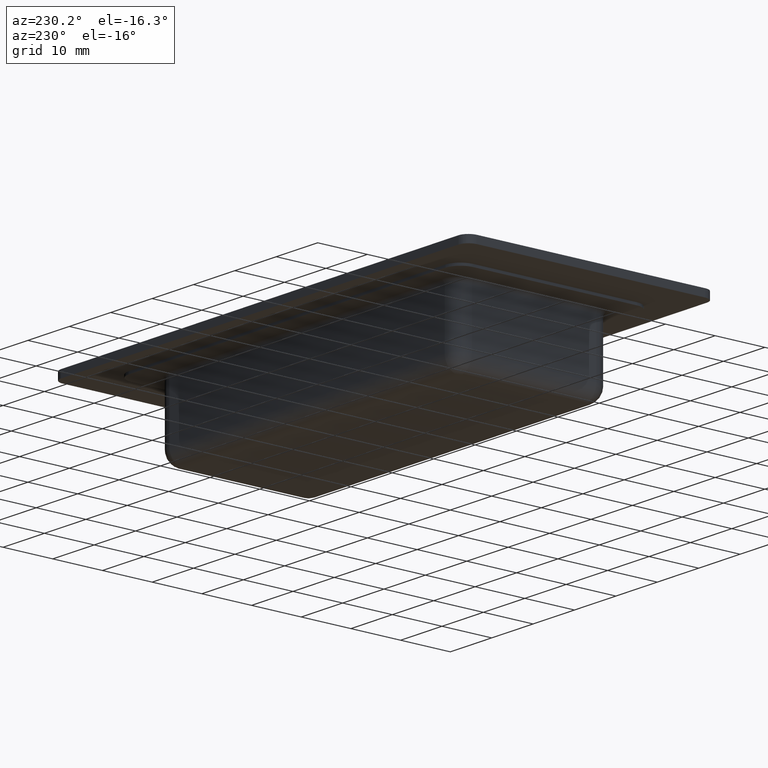
[diagram: clean part render]
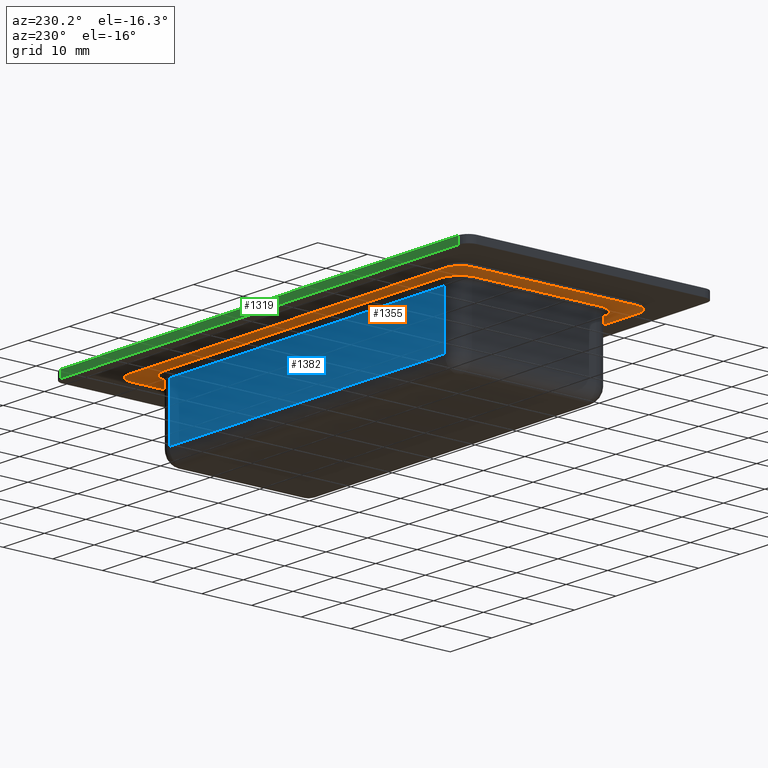
[diagram: same view with three faces highlighted in distinct colors, each labeled with its STEP entity id]
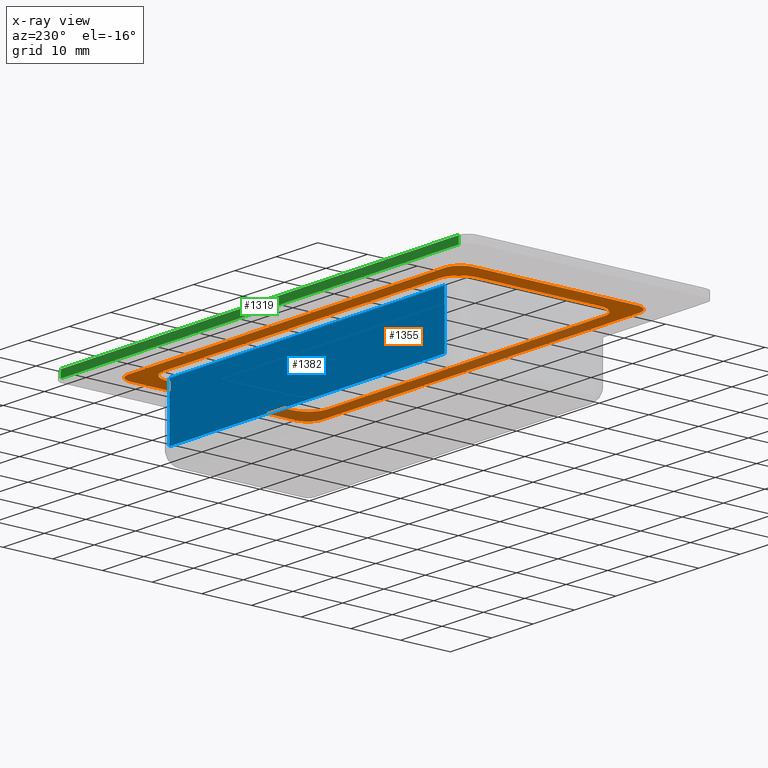
[diagram: x-ray of the same camera — body ghosted, the three highlighted faces saturated]
A machine part, auxiliary view with three faces highlighted in distinct colors.
The next image is the same camera in x-ray (body ghosted, the three faces saturated) — at least one of them is partly hidden behind the body in this view.
Their STEP definitions:

[orange] entity #1355 — the highlighted planar face has unit normal (0, 0, -1).
#36=FACE_BOUND('',#465,.T.);
#148=LINE('',#2491,#256);
#150=LINE('',#2495,#258);
#151=LINE('',#2499,#259);
#152=LINE('',#2503,#260);
#153=LINE('',#2509,#261);
#154=LINE('',#2513,#262);
#155=LINE('',#2517,#263);
#156=LINE('',#2520,#264);
#256=VECTOR('',#1844,33.);
#258=VECTOR('',#1848,76.5);
#259=VECTOR('',#1851,33.);
#260=VECTOR('',#1854,76.5);
#261=VECTOR('',#1859,25.);
#262=VECTOR('',#1862,66.5);
#263=VECTOR('',#1865,25.);
#264=VECTOR('',#1868,66.5);
#312=PLANE('',#1495);
#375=FACE_OUTER_BOUND('',#464,.T.);
#464=EDGE_LOOP('',(#1163,#1164,#1165,#1166,#1167,#1168,#1169,#1170));
#465=EDGE_LOOP('',(#1171,#1172,#1173,#1174,#1175,#1176,#1177,#1178));
#549=CIRCLE('',#1493,3.);
#550=CIRCLE('',#1496,3.);
#551=CIRCLE('',#1497,3.);
#552=CIRCLE('',#1498,3.);
#553=CIRCLE('',#1499,4.);
#554=CIRCLE('',#1500,4.);
#555=CIRCLE('',#1501,4.);
#556=CIRCLE('',#1502,4.);
#669=VERTEX_POINT('',#2484);
#670=VERTEX_POINT('',#2485);
#671=VERTEX_POINT('',#2490);
#672=VERTEX_POINT('',#2494);
#673=VERTEX_POINT('',#2496);
#674=VERTEX_POINT('',#2498);
#675=VERTEX_POINT('',#2500);
#676=VERTEX_POINT('',#2502);
#677=VERTEX_POINT('',#2505);
#678=VERTEX_POINT('',#2506);
#679=VERTEX_POINT('',#2508);
#680=VERTEX_POINT('',#2510);
#681=VERTEX_POINT('',#2512);
#682=VERTEX_POINT('',#2514);
#683=VERTEX_POINT('',#2516);
#684=VERTEX_POINT('',#2518);
#835=EDGE_CURVE('',#669,#670,#549,.T.);
#838=EDGE_CURVE('',#671,#670,#148,.T.);
#840=EDGE_CURVE('',#669,#672,#150,.T.);
#841=EDGE_CURVE('',#673,#672,#550,.T.);
#842=EDGE_CURVE('',#673,#674,#151,.T.);
#843=EDGE_CURVE('',#675,#674,#551,.T.);
#844=EDGE_CURVE('',#675,#676,#152,.T.);
#845=EDGE_CURVE('',#671,#676,#552,.T.);
#846=EDGE_CURVE('',#677,#678,#553,.T.);
#847=EDGE_CURVE('',#679,#677,#153,.T.);
#848=EDGE_CURVE('',#680,#679,#554,.T.);
#849=EDGE_CURVE('',#681,#680,#154,.T.);
#850=EDGE_CURVE('',#682,#681,#555,.T.);
#851=EDGE_CURVE('',#683,#682,#155,.T.);
#852=EDGE_CURVE('',#684,#683,#556,.T.);
#853=EDGE_CURVE('',#678,#684,#156,.T.);
#1163=ORIENTED_EDGE('',*,*,#835,.F.);
#1164=ORIENTED_EDGE('',*,*,#840,.T.);
#1165=ORIENTED_EDGE('',*,*,#841,.F.);
#1166=ORIENTED_EDGE('',*,*,#842,.T.);
#1167=ORIENTED_EDGE('',*,*,#843,.F.);
#1168=ORIENTED_EDGE('',*,*,#844,.T.);
#1169=ORIENTED_EDGE('',*,*,#845,.F.);
#1170=ORIENTED_EDGE('',*,*,#838,.T.);
#1171=ORIENTED_EDGE('',*,*,#846,.F.);
#1172=ORIENTED_EDGE('',*,*,#847,.F.);
#1173=ORIENTED_EDGE('',*,*,#848,.F.);
#1174=ORIENTED_EDGE('',*,*,#849,.F.);
#1175=ORIENTED_EDGE('',*,*,#850,.F.);
#1176=ORIENTED_EDGE('',*,*,#851,.F.);
#1177=ORIENTED_EDGE('',*,*,#852,.F.);
#1178=ORIENTED_EDGE('',*,*,#853,.F.);
#1355=ADVANCED_FACE('',(#375,#36),#312,.T.);
#1493=AXIS2_PLACEMENT_3D('',#2486,#1838,#1839);
#1495=AXIS2_PLACEMENT_3D('',#2493,#1846,#1847);
#1496=AXIS2_PLACEMENT_3D('',#2497,#1849,#1850);
#1497=AXIS2_PLACEMENT_3D('',#2501,#1852,#1853);
#1498=AXIS2_PLACEMENT_3D('',#2504,#1855,#1856);
#1499=AXIS2_PLACEMENT_3D('',#2507,#1857,#1858);
#1500=AXIS2_PLACEMENT_3D('',#2511,#1860,#1861);
#1501=AXIS2_PLACEMENT_3D('',#2515,#1863,#1864);
#1502=AXIS2_PLACEMENT_3D('',#2519,#1866,#1867);
#1838=DIRECTION('center_axis',(0.,0.,1.));
#1839=DIRECTION('ref_axis',(0.707106781186547,-0.707106781186547,0.));
#1844=DIRECTION('',(0.,-1.,0.));
#1846=DIRECTION('center_axis',(0.,0.,-1.));
#1847=DIRECTION('ref_axis',(-1.,0.,0.));
#1848=DIRECTION('',(-1.,0.,0.));
#1849=DIRECTION('center_axis',(0.,0.,1.));
#1850=DIRECTION('ref_axis',(-0.707106781186547,-0.707106781186547,0.));
#1851=DIRECTION('',(0.,1.,0.));
#1852=DIRECTION('center_axis',(0.,0.,1.));
#1853=DIRECTION('ref_axis',(-0.707106781186547,0.707106781186547,0.));
#1854=DIRECTION('',(1.,0.,0.));
#1855=DIRECTION('center_axis',(0.,0.,1.));
#1856=DIRECTION('ref_axis',(0.707106781186547,0.707106781186547,0.));
#1857=DIRECTION('center_axis',(0.,0.,-1.));
#1858=DIRECTION('ref_axis',(-0.707106781186548,0.707106781186547,0.));
#1859=DIRECTION('',(-2.86509167645202E-16,1.,0.));
#1860=DIRECTION('center_axis',(0.,0.,-1.));
#1861=DIRECTION('ref_axis',(-0.707106781186548,-0.707106781186547,0.));
#1862=DIRECTION('',(-1.,1.225073682345E-16,0.));
#1863=DIRECTION('center_axis',(0.,0.,-1.));
#1864=DIRECTION('ref_axis',(0.707106781186548,-0.707106781186547,0.));
#1865=DIRECTION('',(0.,-1.,0.));
#1866=DIRECTION('center_axis',(0.,0.,-1.));
#1867=DIRECTION('ref_axis',(0.707106781186547,0.707106781186548,0.));
#1868=DIRECTION('',(1.,0.,0.));
#2484=CARTESIAN_POINT('',(38.25,-19.5,-0.5));
#2485=CARTESIAN_POINT('',(41.25,-16.5,-0.5));
#2486=CARTESIAN_POINT('Origin',(38.25,-16.5,-0.5));
#2490=CARTESIAN_POINT('',(41.25,16.5,-0.5));
#2491=CARTESIAN_POINT('',(41.25,19.5,-0.5));
#2493=CARTESIAN_POINT('Origin',(0.,0.,-0.5));
#2494=CARTESIAN_POINT('',(-38.25,-19.5,-0.5));
#2495=CARTESIAN_POINT('',(41.25,-19.5,-0.5));
#2496=CARTESIAN_POINT('',(-41.25,-16.5,-0.5));
#2497=CARTESIAN_POINT('Origin',(-38.25,-16.5,-0.5));
#2498=CARTESIAN_POINT('',(-41.25,16.5,-0.5));
#2499=CARTESIAN_POINT('',(-41.25,-19.5,-0.5));
#2500=CARTESIAN_POINT('',(-38.25,19.5,-0.5));
#2501=CARTESIAN_POINT('Origin',(-38.25,16.5,-0.5));
#2502=CARTESIAN_POINT('',(38.25,19.5,-0.5));
#2503=CARTESIAN_POINT('',(-41.25,19.5,-0.5));
#2504=CARTESIAN_POINT('Origin',(38.25,16.5,-0.5));
#2505=CARTESIAN_POINT('',(-37.25,12.5,-0.5));
#2506=CARTESIAN_POINT('',(-33.25,16.5,-0.5));
#2507=CARTESIAN_POINT('Origin',(-33.25,12.5,-0.5));
#2508=CARTESIAN_POINT('',(-37.25,-12.5,-0.5));
#2509=CARTESIAN_POINT('',(-37.25,7.75,-0.5));
#2510=CARTESIAN_POINT('',(-33.25,-16.5,-0.5));
#2511=CARTESIAN_POINT('Origin',(-33.25,-12.5,-0.5));
#2512=CARTESIAN_POINT('',(33.25,-16.5,-0.5));
#2513=CARTESIAN_POINT('',(-18.125,-16.5,-0.5));
#2514=CARTESIAN_POINT('',(37.25,-12.5,-0.5));
#2515=CARTESIAN_POINT('Origin',(33.25,-12.5,-0.5));
#2516=CARTESIAN_POINT('',(37.25,12.5,-0.5));
#2517=CARTESIAN_POINT('',(37.25,-7.75,-0.5));
#2518=CARTESIAN_POINT('',(33.25,16.5,-0.5));
#2519=CARTESIAN_POINT('Origin',(33.25,12.5,-0.5));
#2520=CARTESIAN_POINT('',(18.125,16.5,-0.5));

[blue] entity #1382 — the highlighted planar face has unit normal (0, 1, 0).
#162=LINE('',#2540,#270);
#172=LINE('',#2579,#280);
#175=LINE('',#2594,#283);
#179=LINE('',#2614,#287);
#270=VECTOR('',#1896,66.5);
#280=VECTOR('',#1944,11.);
#283=VECTOR('',#1959,66.5);
#287=VECTOR('',#1993,11.);
#318=PLANE('',#1553);
#402=FACE_OUTER_BOUND('',#492,.T.);
#492=EDGE_LOOP('',(#1279,#1280,#1281,#1282));
#686=VERTEX_POINT('',#2534);
#687=VERTEX_POINT('',#2538);
#697=VERTEX_POINT('',#2578);
#703=VERTEX_POINT('',#2593);
#863=EDGE_CURVE('',#687,#686,#162,.T.);
#882=EDGE_CURVE('',#686,#697,#172,.T.);
#889=EDGE_CURVE('',#697,#703,#175,.T.);
#900=EDGE_CURVE('',#703,#687,#179,.T.);
#1279=ORIENTED_EDGE('',*,*,#863,.F.);
#1280=ORIENTED_EDGE('',*,*,#900,.F.);
#1281=ORIENTED_EDGE('',*,*,#889,.F.);
#1282=ORIENTED_EDGE('',*,*,#882,.F.);
#1382=ADVANCED_FACE('',(#402),#318,.T.);
#1553=AXIS2_PLACEMENT_3D('',#2613,#1991,#1992);
#1896=DIRECTION('',(-1.,0.,0.));
#1944=DIRECTION('',(0.,0.,-1.));
#1959=DIRECTION('',(1.,0.,0.));
#1991=DIRECTION('center_axis',(0.,1.,0.));
#1992=DIRECTION('ref_axis',(-1.,0.,0.));
#1993=DIRECTION('',(0.,0.,1.));
#2534=CARTESIAN_POINT('',(-33.25,15.5,-1.5));
#2538=CARTESIAN_POINT('',(33.25,15.5,-1.5));
#2540=CARTESIAN_POINT('',(18.125,15.5,-1.5));
#2578=CARTESIAN_POINT('',(-33.25,15.5,-12.5));
#2579=CARTESIAN_POINT('',(-33.25,15.5,-15.5));
#2593=CARTESIAN_POINT('',(33.25,15.5,-12.5));
#2594=CARTESIAN_POINT('',(18.125,15.5,-12.5));
#2613=CARTESIAN_POINT('Origin',(36.25,15.5,-15.5));
#2614=CARTESIAN_POINT('',(33.25,15.5,-15.5));

[green] entity #1319 — the highlighted planar face has unit normal (-0, 1, 0).
#90=LINE('',#2281,#198);
#107=LINE('',#2333,#215);
#108=LINE('',#2336,#216);
#109=LINE('',#2337,#217);
#198=VECTOR('',#1602,96.);
#215=VECTOR('',#1659,1.5);
#216=VECTOR('',#1662,96.);
#217=VECTOR('',#1663,1.5);
#300=PLANE('',#1423);
#339=FACE_OUTER_BOUND('',#426,.T.);
#426=EDGE_LOOP('',(#993,#994,#995,#996));
#610=VERTEX_POINT('',#2278);
#611=VERTEX_POINT('',#2280);
#625=VERTEX_POINT('',#2329);
#627=VERTEX_POINT('',#2335);
#734=EDGE_CURVE('',#610,#611,#90,.T.);
#761=EDGE_CURVE('',#625,#611,#107,.T.);
#762=EDGE_CURVE('',#627,#625,#108,.T.);
#763=EDGE_CURVE('',#627,#610,#109,.T.);
#993=ORIENTED_EDGE('',*,*,#762,.T.);
#994=ORIENTED_EDGE('',*,*,#761,.T.);
#995=ORIENTED_EDGE('',*,*,#734,.F.);
#996=ORIENTED_EDGE('',*,*,#763,.F.);
#1319=ADVANCED_FACE('',(#339),#300,.T.);
#1423=AXIS2_PLACEMENT_3D('',#2334,#1660,#1661);
#1602=DIRECTION('',(-1.,-4.62592926927149E-17,0.));
#1659=DIRECTION('',(0.,0.,1.));
#1660=DIRECTION('center_axis',(-4.62592926927149E-17,1.,0.));
#1661=DIRECTION('ref_axis',(-1.,0.,0.));
#1662=DIRECTION('',(-1.,-4.62592926927149E-17,0.));
#1663=DIRECTION('',(0.,0.,1.));
#2278=CARTESIAN_POINT('',(48.,25.,1.5));
#2280=CARTESIAN_POINT('',(-48.,25.,1.5));
#2281=CARTESIAN_POINT('',(48.,25.,1.5));
#2329=CARTESIAN_POINT('',(-48.,25.,0.));
#2333=CARTESIAN_POINT('',(-48.,25.,0.));
#2334=CARTESIAN_POINT('Origin',(48.,25.,0.));
#2335=CARTESIAN_POINT('',(48.,25.,0.));
#2336=CARTESIAN_POINT('',(48.,25.,0.));
#2337=CARTESIAN_POINT('',(48.,25.,0.));